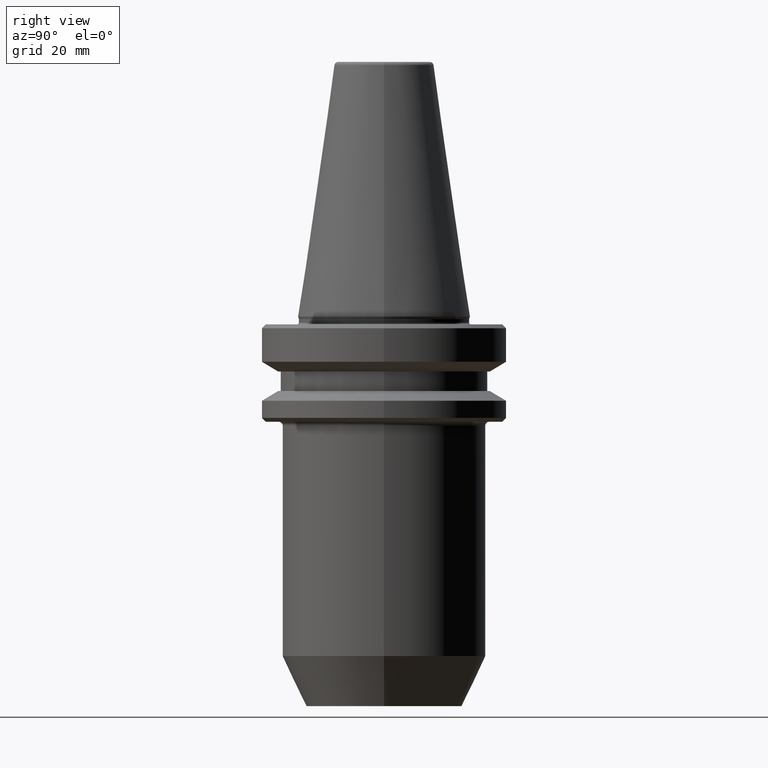
[diagram: clean part render]
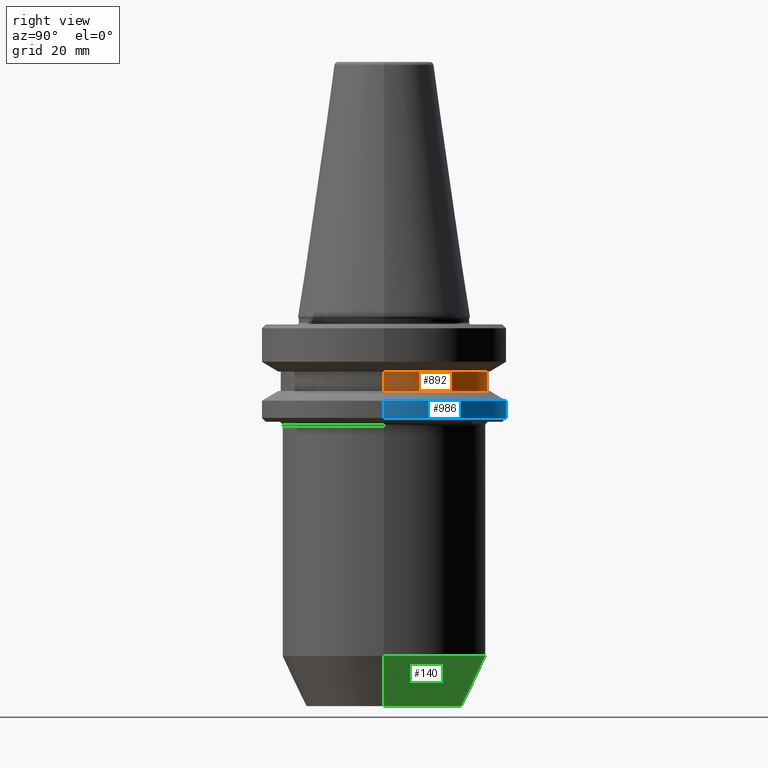
[diagram: same view with three faces highlighted in distinct colors, each labeled with its STEP entity id]
A machine part, right view with three faces highlighted in distinct colors.
Their STEP definitions:

[orange] entity #892 — the highlighted cylindrical surface (partial cylindrical patch) has radius 26.5 mm, axis along (-0, -0, 1).
#67 = VECTOR ( 'NONE', #1012, 1000.000000000000000 ) ;
#149 = DIRECTION ( 'NONE',  ( 1.000000000000000000, 0.0000000000000000000, 0.0000000000000000000 ) ) ;
#168 = VERTEX_POINT ( 'NONE', #566 ) ;
#174 = VERTEX_POINT ( 'NONE', #263 ) ;
#181 = DIRECTION ( 'NONE',  ( -0.0000000000000000000, -0.0000000000000000000, 1.000000000000000000 ) ) ;
#255 = EDGE_CURVE ( 'NONE', #475, #331, #881, .T. ) ;
#258 = AXIS2_PLACEMENT_3D ( 'NONE', #857, #832, #787 ) ;
#263 = CARTESIAN_POINT ( 'NONE',  ( -26.50000000000007800, 3.245314017740495600E-015, -18.41128678844344800 ) ) ;
#323 = EDGE_CURVE ( 'NONE', #168, #174, #450, .T. ) ;
#331 = VERTEX_POINT ( 'NONE', #844 ) ;
#358 = ORIENTED_EDGE ( 'NONE', *, *, #323, .T. ) ;
#429 = LINE ( 'NONE', #590, #737 ) ;
#450 = CIRCLE ( 'NONE', #258, 26.50000000000007800 ) ;
#465 = EDGE_LOOP ( 'NONE', ( #358, #786, #668, #509 ) ) ;
#475 = VERTEX_POINT ( 'NONE', #531 ) ;
#483 = CARTESIAN_POINT ( 'NONE',  ( 26.50000000000007800, 0.0000000000000000000, 82.74845858742440900 ) ) ;
#487 = LINE ( 'NONE', #483, #67 ) ;
#491 = AXIS2_PLACEMENT_3D ( 'NONE', #611, #958, #149 ) ;
#509 = ORIENTED_EDGE ( 'NONE', *, *, #686, .F. ) ;
#531 = CARTESIAN_POINT ( 'NONE',  ( 26.50000000000007800, 0.0000000000000000000, -13.41128678834002700 ) ) ;
#546 = DIRECTION ( 'NONE',  ( 1.000000000000000000, 0.0000000000000000000, 0.0000000000000000000 ) ) ;
#566 = CARTESIAN_POINT ( 'NONE',  ( 26.50000000000007800, 0.0000000000000000000, -18.41128678844344800 ) ) ;
#590 = CARTESIAN_POINT ( 'NONE',  ( -26.50000000000007800, 3.245314017740495600E-015, 82.74845858742440900 ) ) ;
#611 = CARTESIAN_POINT ( 'NONE',  ( 0.0000000000000000000, 0.0000000000000000000, -13.41128678834002700 ) ) ;
#617 = AXIS2_PLACEMENT_3D ( 'NONE', #1025, #777, #546 ) ;
#668 = ORIENTED_EDGE ( 'NONE', *, *, #255, .F. ) ;
#686 = EDGE_CURVE ( 'NONE', #168, #475, #487, .T. ) ;
#737 = VECTOR ( 'NONE', #181, 1000.000000000000000 ) ;
#777 = DIRECTION ( 'NONE',  ( -0.0000000000000000000, -0.0000000000000000000, 1.000000000000000000 ) ) ;
#786 = ORIENTED_EDGE ( 'NONE', *, *, #829, .T. ) ;
#787 = DIRECTION ( 'NONE',  ( 1.000000000000000000, 0.0000000000000000000, 0.0000000000000000000 ) ) ;
#829 = EDGE_CURVE ( 'NONE', #174, #331, #429, .T. ) ;
#832 = DIRECTION ( 'NONE',  ( -0.0000000000000000000, -0.0000000000000000000, 1.000000000000000000 ) ) ;
#844 = CARTESIAN_POINT ( 'NONE',  ( -26.50000000000007800, 3.245314017740495600E-015, -13.41128678834002700 ) ) ;
#857 = CARTESIAN_POINT ( 'NONE',  ( 0.0000000000000000000, 0.0000000000000000000, -18.41128678844344800 ) ) ;
#881 = CIRCLE ( 'NONE', #491, 26.50000000000007800 ) ;
#892 = ADVANCED_FACE ( 'NONE', ( #1014 ), #1006, .T. ) ;
#958 = DIRECTION ( 'NONE',  ( -0.0000000000000000000, -0.0000000000000000000, 1.000000000000000000 ) ) ;
#1006 = CYLINDRICAL_SURFACE ( 'NONE', #617, 26.50000000000007800 ) ;
#1012 = DIRECTION ( 'NONE',  ( -0.0000000000000000000, -0.0000000000000000000, 1.000000000000000000 ) ) ;
#1014 = FACE_OUTER_BOUND ( 'NONE', #465, .T. ) ;
#1025 = CARTESIAN_POINT ( 'NONE',  ( 0.0000000000000000000, 0.0000000000000000000, 82.74845858742440900 ) ) ;

[blue] entity #986 — the highlighted cylindrical surface (partial cylindrical patch) has radius 31.5 mm, axis along (-0, -0, 1).
#36 = ORIENTED_EDGE ( 'NONE', *, *, #484, .T. ) ;
#102 = FACE_OUTER_BOUND ( 'NONE', #359, .T. ) ;
#116 = VERTEX_POINT ( 'NONE', #285 ) ;
#180 = VERTEX_POINT ( 'NONE', #534 ) ;
#192 = DIRECTION ( 'NONE',  ( 1.000000000000000000, 0.0000000000000000000, 0.0000000000000000000 ) ) ;
#195 = ORIENTED_EDGE ( 'NONE', *, *, #656, .F. ) ;
#212 = VERTEX_POINT ( 'NONE', #542 ) ;
#224 = DIRECTION ( 'NONE',  ( -0.0000000000000000000, -0.0000000000000000000, 1.000000000000000000 ) ) ;
#234 = ORIENTED_EDGE ( 'NONE', *, *, #869, .F. ) ;
#269 = CARTESIAN_POINT ( 'NONE',  ( 0.0000000000000000000, 0.0000000000000000000, -25.31128678844346400 ) ) ;
#285 = CARTESIAN_POINT ( 'NONE',  ( 31.50000000000019500, 0.0000000000000000000, -25.31128678844346400 ) ) ;
#292 = DIRECTION ( 'NONE',  ( -0.0000000000000000000, -0.0000000000000000000, 1.000000000000000000 ) ) ;
#336 = DIRECTION ( 'NONE',  ( 1.000000000000000000, 0.0000000000000000000, 0.0000000000000000000 ) ) ;
#337 = CARTESIAN_POINT ( 'NONE',  ( 0.0000000000000000000, 0.0000000000000000000, 82.74845858742440900 ) ) ;
#345 = VERTEX_POINT ( 'NONE', #618 ) ;
#359 = EDGE_LOOP ( 'NONE', ( #36, #852, #195, #234 ) ) ;
#438 = CARTESIAN_POINT ( 'NONE',  ( 0.0000000000000000000, 0.0000000000000000000, -20.91142879476059900 ) ) ;
#484 = EDGE_CURVE ( 'NONE', #116, #345, #719, .T. ) ;
#534 = CARTESIAN_POINT ( 'NONE',  ( 31.50000000000019500, 0.0000000000000000000, -20.91142879476059900 ) ) ;
#538 = AXIS2_PLACEMENT_3D ( 'NONE', #269, #749, #625 ) ;
#542 = CARTESIAN_POINT ( 'NONE',  ( -31.50000000000019500, 3.857637417314186400E-015, -20.91142879476059900 ) ) ;
#567 = CIRCLE ( 'NONE', #1005, 31.50000000000019500 ) ;
#569 = VECTOR ( 'NONE', #923, 1000.000000000000000 ) ;
#572 = LINE ( 'NONE', #833, #569 ) ;
#578 = CYLINDRICAL_SURFACE ( 'NONE', #803, 31.50000000000019500 ) ;
#618 = CARTESIAN_POINT ( 'NONE',  ( -31.50000000000019500, 3.857637417314186400E-015, -25.31128678844346400 ) ) ;
#625 = DIRECTION ( 'NONE',  ( 1.000000000000000000, 0.0000000000000000000, 0.0000000000000000000 ) ) ;
#653 = DIRECTION ( 'NONE',  ( -0.0000000000000000000, -0.0000000000000000000, 1.000000000000000000 ) ) ;
#656 = EDGE_CURVE ( 'NONE', #180, #212, #567, .T. ) ;
#719 = CIRCLE ( 'NONE', #538, 31.50000000000019500 ) ;
#734 = CARTESIAN_POINT ( 'NONE',  ( 31.50000000000019500, 0.0000000000000000000, 82.74845858742440900 ) ) ;
#749 = DIRECTION ( 'NONE',  ( -0.0000000000000000000, -0.0000000000000000000, 1.000000000000000000 ) ) ;
#803 = AXIS2_PLACEMENT_3D ( 'NONE', #337, #653, #336 ) ;
#833 = CARTESIAN_POINT ( 'NONE',  ( -31.50000000000019500, 3.857637417314186400E-015, 82.74845858742440900 ) ) ;
#852 = ORIENTED_EDGE ( 'NONE', *, *, #1010, .T. ) ;
#869 = EDGE_CURVE ( 'NONE', #116, #180, #1033, .T. ) ;
#923 = DIRECTION ( 'NONE',  ( -0.0000000000000000000, -0.0000000000000000000, 1.000000000000000000 ) ) ;
#986 = ADVANCED_FACE ( 'NONE', ( #102 ), #578, .T. ) ;
#1005 = AXIS2_PLACEMENT_3D ( 'NONE', #438, #292, #192 ) ;
#1010 = EDGE_CURVE ( 'NONE', #345, #212, #572, .T. ) ;
#1022 = VECTOR ( 'NONE', #224, 1000.000000000000000 ) ;
#1033 = LINE ( 'NONE', #734, #1022 ) ;

[green] entity #140 — the highlighted conical surface has half-angle 25 deg.
#14 = EDGE_CURVE ( 'NONE', #326, #196, #90, .T. ) ;
#90 = CIRCLE ( 'NONE', #859, 26.00000000000000000 ) ;
#111 = ORIENTED_EDGE ( 'NONE', *, *, #230, .T. ) ;
#139 = DIRECTION ( 'NONE',  ( -0.0000000000000000000, -0.0000000000000000000, 1.000000000000000000 ) ) ;
#140 = ADVANCED_FACE ( 'NONE', ( #855 ), #808, .T. ) ;
#196 = VERTEX_POINT ( 'NONE', #826 ) ;
#227 = EDGE_CURVE ( 'NONE', #414, #326, #626, .T. ) ;
#230 = EDGE_CURVE ( 'NONE', #428, #196, #752, .T. ) ;
#291 = CARTESIAN_POINT ( 'NONE',  ( 0.0000000000000000000, 0.0000000000000000000, -99.31128678834039600 ) ) ;
#326 = VERTEX_POINT ( 'NONE', #462 ) ;
#370 = DIRECTION ( 'NONE',  ( 1.000000000000000000, 0.0000000000000000000, 0.0000000000000000000 ) ) ;
#414 = VERTEX_POINT ( 'NONE', #521 ) ;
#422 = DIRECTION ( 'NONE',  ( -0.0000000000000000000, -0.0000000000000000000, 1.000000000000000000 ) ) ;
#428 = VERTEX_POINT ( 'NONE', #584 ) ;
#457 = ORIENTED_EDGE ( 'NONE', *, *, #1031, .T. ) ;
#462 = CARTESIAN_POINT ( 'NONE',  ( 26.00000000000000000, 0.0000000000000000000, -86.44424526528280200 ) ) ;
#521 = CARTESIAN_POINT ( 'NONE',  ( 20.00000000000000000, 0.0000000000000000000, -99.31128678834039600 ) ) ;
#584 = CARTESIAN_POINT ( 'NONE',  ( -20.00000000000000000, 2.816687638038912400E-015, -99.31128678834039600 ) ) ;
#587 = EDGE_LOOP ( 'NONE', ( #457, #111, #960, #905 ) ) ;
#607 = DIRECTION ( 'NONE',  ( 1.000000000000000000, 0.0000000000000000000, 0.0000000000000000000 ) ) ;
#626 = LINE ( 'NONE', #917, #891 ) ;
#661 = DIRECTION ( 'NONE',  ( 0.4226182617406928400, 0.0000000000000000000, 0.9063077870366530500 ) ) ;
#687 = AXIS2_PLACEMENT_3D ( 'NONE', #804, #139, #694 ) ;
#694 = DIRECTION ( 'NONE',  ( 1.000000000000000000, 0.0000000000000000000, 0.0000000000000000000 ) ) ;
#706 = CARTESIAN_POINT ( 'NONE',  ( 0.0000000000000000000, 0.0000000000000000000, -86.44424526528280200 ) ) ;
#752 = LINE ( 'NONE', #887, #902 ) ;
#804 = CARTESIAN_POINT ( 'NONE',  ( 0.0000000000000000000, 0.0000000000000000000, -99.31128678834039600 ) ) ;
#808 = CONICAL_SURFACE ( 'NONE', #687, 20.00000000000000000, 0.4363323129985751100 ) ;
#826 = CARTESIAN_POINT ( 'NONE',  ( -26.00000000000000000, 3.184081677783118200E-015, -86.44424526528280200 ) ) ;
#837 = DIRECTION ( 'NONE',  ( -0.4226182617406928400, 5.175581015019578000E-017, 0.9063077870366530500 ) ) ;
#842 = DIRECTION ( 'NONE',  ( -0.0000000000000000000, -0.0000000000000000000, 1.000000000000000000 ) ) ;
#855 = FACE_OUTER_BOUND ( 'NONE', #587, .T. ) ;
#859 = AXIS2_PLACEMENT_3D ( 'NONE', #706, #422, #607 ) ;
#887 = CARTESIAN_POINT ( 'NONE',  ( -20.00000000000000000, 2.449293598294706500E-015, -99.31128678834039600 ) ) ;
#891 = VECTOR ( 'NONE', #661, 1000.000000000000000 ) ;
#902 = VECTOR ( 'NONE', #837, 1000.000000000000000 ) ;
#905 = ORIENTED_EDGE ( 'NONE', *, *, #227, .F. ) ;
#913 = AXIS2_PLACEMENT_3D ( 'NONE', #291, #842, #370 ) ;
#917 = CARTESIAN_POINT ( 'NONE',  ( 20.00000000000000000, 0.0000000000000000000, -99.31128678834039600 ) ) ;
#960 = ORIENTED_EDGE ( 'NONE', *, *, #14, .F. ) ;
#970 = CIRCLE ( 'NONE', #913, 20.00000000000000000 ) ;
#1031 = EDGE_CURVE ( 'NONE', #414, #428, #970, .T. ) ;